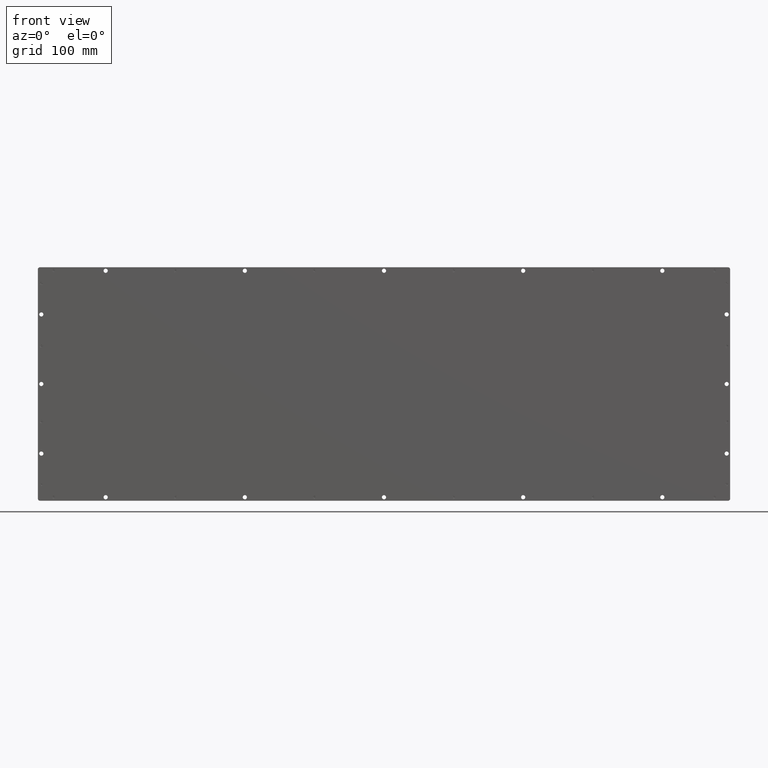
[diagram: clean part render]
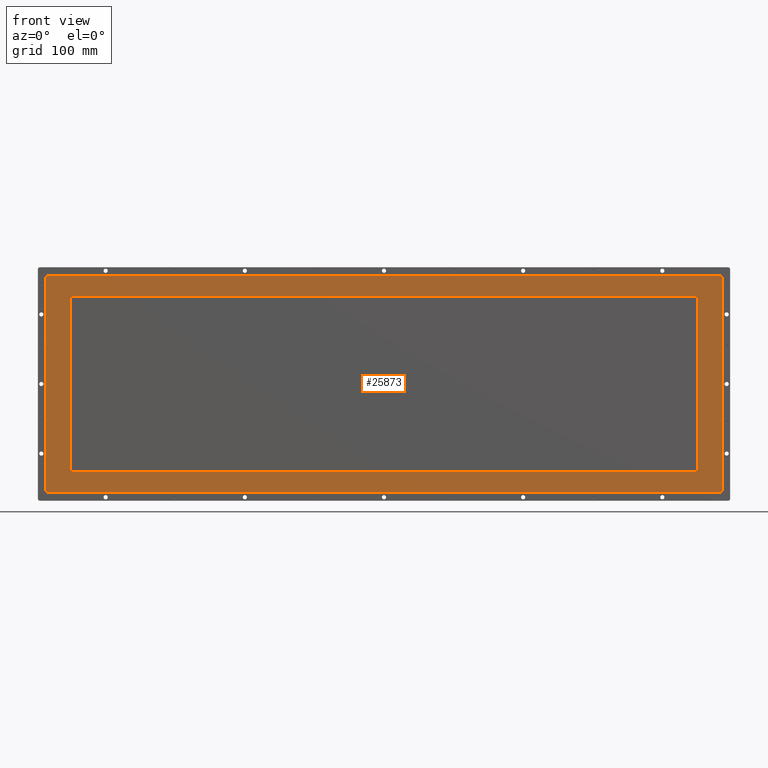
[diagram: same view with one face highlighted and labeled with its STEP entity id]
A machine part, front view. The second image highlights one B-rep face of the part: STEP entity #25873.
In plain terms, the highlighted planar face has unit normal (-0, -1, 0).
Its self-contained STEP definition (entity closure, byte-faithful):
#2343=FACE_BOUND('',#5914,.T.);
#3231=CIRCLE('',#28431,2.00000000000003);
#3233=CIRCLE('',#28434,3.5);
#3234=CIRCLE('',#28435,3.5);
#3235=CIRCLE('',#28436,3.5);
#3236=CIRCLE('',#28437,3.5);
#3237=CIRCLE('',#28438,2.00000000000003);
#3238=CIRCLE('',#28439,2.00000000000003);
#3239=CIRCLE('',#28440,2.00000000000005);
#4137=FACE_OUTER_BOUND('',#5913,.T.);
#5913=EDGE_LOOP('',(#20694,#20695,#20696,#20697,#20698,#20699,#20700,#20701));
#5914=EDGE_LOOP('',(#20702,#20703,#20704,#20705,#20706,#20707,#20708,#20709));
#7645=LINE('',#41163,#9858);
#7646=LINE('',#41167,#9859);
#7647=LINE('',#41171,#9860);
#7648=LINE('',#41175,#9861);
#7649=LINE('',#41181,#9862);
#7650=LINE('',#41184,#9863);
#7651=LINE('',#41186,#9864);
#7652=LINE('',#41189,#9865);
#9858=VECTOR('',#33191,10.);
#9859=VECTOR('',#33194,10.);
#9860=VECTOR('',#33197,10.);
#9861=VECTOR('',#33200,10.);
#9862=VECTOR('',#33205,10.);
#9863=VECTOR('',#33208,10.);
#9864=VECTOR('',#33209,10.);
#9865=VECTOR('',#33212,10.);
#12365=VERTEX_POINT('',#41152);
#12366=VERTEX_POINT('',#41153);
#12369=VERTEX_POINT('',#41161);
#12370=VERTEX_POINT('',#41162);
#12371=VERTEX_POINT('',#41164);
#12372=VERTEX_POINT('',#41166);
#12373=VERTEX_POINT('',#41168);
#12374=VERTEX_POINT('',#41170);
#12375=VERTEX_POINT('',#41172);
#12376=VERTEX_POINT('',#41174);
#12377=VERTEX_POINT('',#41177);
#12378=VERTEX_POINT('',#41178);
#12379=VERTEX_POINT('',#41180);
#12380=VERTEX_POINT('',#41182);
#12381=VERTEX_POINT('',#41185);
#12382=VERTEX_POINT('',#41187);
#15338=EDGE_CURVE('',#12365,#12366,#3231,.T.);
#15342=EDGE_CURVE('',#12369,#12370,#7645,.T.);
#15343=EDGE_CURVE('',#12370,#12371,#3233,.T.);
#15344=EDGE_CURVE('',#12371,#12372,#7646,.T.);
#15345=EDGE_CURVE('',#12372,#12373,#3234,.T.);
#15346=EDGE_CURVE('',#12373,#12374,#7647,.T.);
#15347=EDGE_CURVE('',#12374,#12375,#3235,.T.);
#15348=EDGE_CURVE('',#12375,#12376,#7648,.T.);
#15349=EDGE_CURVE('',#12376,#12369,#3236,.T.);
#15350=EDGE_CURVE('',#12377,#12378,#3237,.T.);
#15351=EDGE_CURVE('',#12379,#12377,#7649,.T.);
#15352=EDGE_CURVE('',#12380,#12379,#3238,.T.);
#15353=EDGE_CURVE('',#12366,#12380,#7650,.T.);
#15354=EDGE_CURVE('',#12381,#12365,#7651,.T.);
#15355=EDGE_CURVE('',#12382,#12381,#3239,.T.);
#15356=EDGE_CURVE('',#12378,#12382,#7652,.T.);
#20694=ORIENTED_EDGE('',*,*,#15342,.T.);
#20695=ORIENTED_EDGE('',*,*,#15343,.T.);
#20696=ORIENTED_EDGE('',*,*,#15344,.T.);
#20697=ORIENTED_EDGE('',*,*,#15345,.T.);
#20698=ORIENTED_EDGE('',*,*,#15346,.T.);
#20699=ORIENTED_EDGE('',*,*,#15347,.T.);
#20700=ORIENTED_EDGE('',*,*,#15348,.T.);
#20701=ORIENTED_EDGE('',*,*,#15349,.T.);
#20702=ORIENTED_EDGE('',*,*,#15350,.F.);
#20703=ORIENTED_EDGE('',*,*,#15351,.F.);
#20704=ORIENTED_EDGE('',*,*,#15352,.F.);
#20705=ORIENTED_EDGE('',*,*,#15353,.F.);
#20706=ORIENTED_EDGE('',*,*,#15338,.F.);
#20707=ORIENTED_EDGE('',*,*,#15354,.F.);
#20708=ORIENTED_EDGE('',*,*,#15355,.F.);
#20709=ORIENTED_EDGE('',*,*,#15356,.F.);
#24721=PLANE('',#28433);
#25873=ADVANCED_FACE('',(#4137,#2343),#24721,.T.);
#28431=AXIS2_PLACEMENT_3D('',#41154,#33183,#33184);
#28433=AXIS2_PLACEMENT_3D('',#41160,#33189,#33190);
#28434=AXIS2_PLACEMENT_3D('',#41165,#33192,#33193);
#28435=AXIS2_PLACEMENT_3D('',#41169,#33195,#33196);
#28436=AXIS2_PLACEMENT_3D('',#41173,#33198,#33199);
#28437=AXIS2_PLACEMENT_3D('',#41176,#33201,#33202);
#28438=AXIS2_PLACEMENT_3D('',#41179,#33203,#33204);
#28439=AXIS2_PLACEMENT_3D('',#41183,#33206,#33207);
#28440=AXIS2_PLACEMENT_3D('',#41188,#33210,#33211);
#33183=DIRECTION('center_axis',(0.,0.,1.));
#33184=DIRECTION('ref_axis',(0.,1.,0.));
#33189=DIRECTION('center_axis',(0.,0.,1.));
#33190=DIRECTION('ref_axis',(1.,0.,0.));
#33191=DIRECTION('',(0.,-1.,0.));
#33192=DIRECTION('center_axis',(0.,0.,1.));
#33193=DIRECTION('ref_axis',(-1.,0.,0.));
#33194=DIRECTION('',(1.,1.10447057372036E-16,0.));
#33195=DIRECTION('center_axis',(0.,0.,1.));
#33196=DIRECTION('ref_axis',(0.,-1.,0.));
#33197=DIRECTION('',(0.,1.,0.));
#33198=DIRECTION('center_axis',(0.,0.,1.));
#33199=DIRECTION('ref_axis',(1.,0.,0.));
#33200=DIRECTION('',(-1.,-2.57709800534751E-16,0.));
#33201=DIRECTION('center_axis',(0.,0.,1.));
#33202=DIRECTION('ref_axis',(0.,1.,0.));
#33203=DIRECTION('center_axis',(0.,0.,1.));
#33204=DIRECTION('ref_axis',(0.,-1.,0.));
#33205=DIRECTION('',(-1.,-2.57156335325203E-16,0.));
#33206=DIRECTION('center_axis',(0.,0.,1.));
#33207=DIRECTION('ref_axis',(-1.,0.,0.));
#33208=DIRECTION('',(0.,1.,0.));
#33209=DIRECTION('',(1.,1.18687539380863E-16,0.));
#33210=DIRECTION('center_axis',(0.,0.,1.));
#33211=DIRECTION('ref_axis',(1.,0.,0.));
#33212=DIRECTION('',(0.,-1.,0.));
#41152=CARTESIAN_POINT('',(449.,-126.,3.5));
#41153=CARTESIAN_POINT('',(451.,-124.,3.5));
#41154=CARTESIAN_POINT('Origin',(449.,-124.,3.5));
#41160=CARTESIAN_POINT('Origin',(9.3803558005239E-14,-4.012707759113E-15,
3.5));
#41161=CARTESIAN_POINT('',(-486.,152.5,3.5));
#41162=CARTESIAN_POINT('',(-486.,-152.5,3.5));
#41163=CARTESIAN_POINT('',(-486.,152.5,3.5));
#41164=CARTESIAN_POINT('',(-482.5,-156.,3.5));
#41165=CARTESIAN_POINT('Origin',(-482.5,-152.5,3.5));
#41166=CARTESIAN_POINT('',(482.5,-156.,3.5));
#41167=CARTESIAN_POINT('',(-482.5,-156.,3.5));
#41168=CARTESIAN_POINT('',(486.,-152.5,3.5));
#41169=CARTESIAN_POINT('Origin',(482.5,-152.5,3.5));
#41170=CARTESIAN_POINT('',(486.,152.5,3.5));
#41171=CARTESIAN_POINT('',(486.,-152.5,3.5));
#41172=CARTESIAN_POINT('',(482.5,156.,3.5));
#41173=CARTESIAN_POINT('Origin',(482.5,152.5,3.5));
#41174=CARTESIAN_POINT('',(-482.5,156.,3.5));
#41175=CARTESIAN_POINT('',(482.5,156.,3.5));
#41176=CARTESIAN_POINT('Origin',(-482.5,152.5,3.5));
#41177=CARTESIAN_POINT('',(-449.,126.,3.5));
#41178=CARTESIAN_POINT('',(-451.,124.,3.5));
#41179=CARTESIAN_POINT('Origin',(-449.,124.,3.5));
#41180=CARTESIAN_POINT('',(449.,126.,3.5));
#41181=CARTESIAN_POINT('',(224.5,126.,3.5));
#41182=CARTESIAN_POINT('',(451.,124.,3.5));
#41183=CARTESIAN_POINT('Origin',(449.,124.,3.5));
#41184=CARTESIAN_POINT('',(451.,-62.,3.5));
#41185=CARTESIAN_POINT('',(-449.,-126.,3.5));
#41186=CARTESIAN_POINT('',(-224.5,-126.,3.5));
#41187=CARTESIAN_POINT('',(-451.,-124.,3.5));
#41188=CARTESIAN_POINT('Origin',(-449.,-124.,3.5));
#41189=CARTESIAN_POINT('',(-451.,62.,3.5));